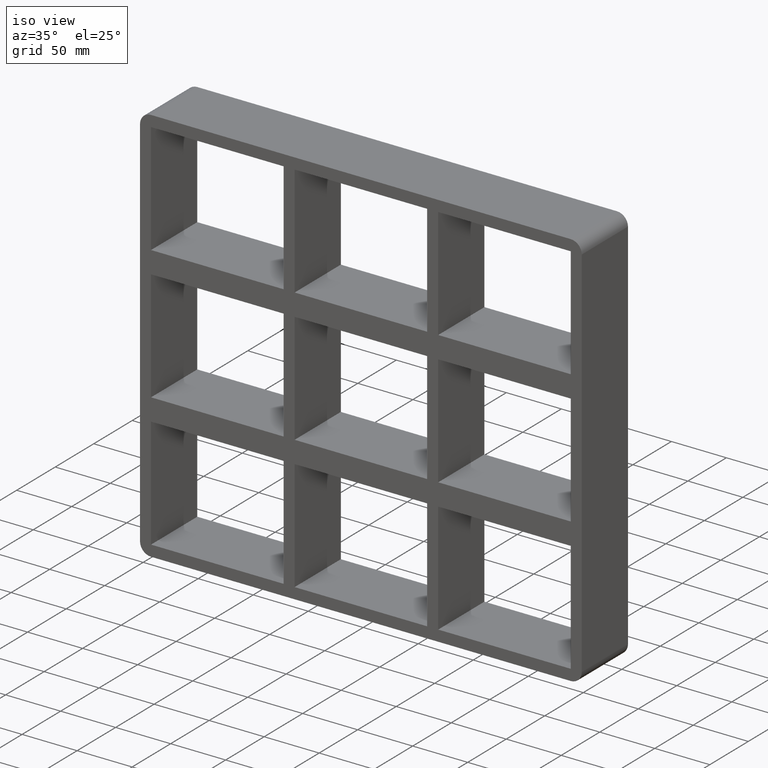
[diagram: clean part render]
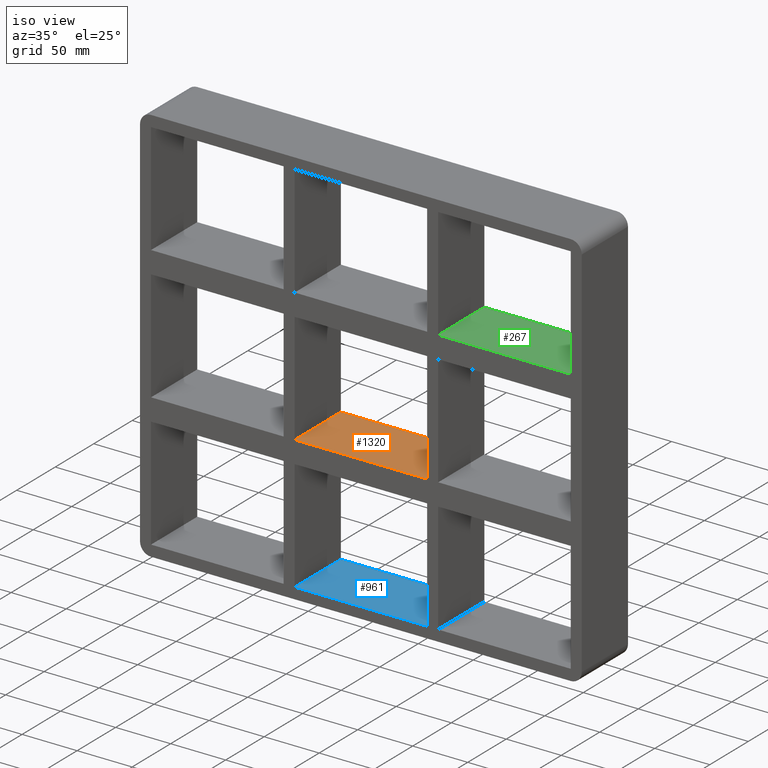
[diagram: same view with three faces highlighted in distinct colors, each labeled with its STEP entity id]
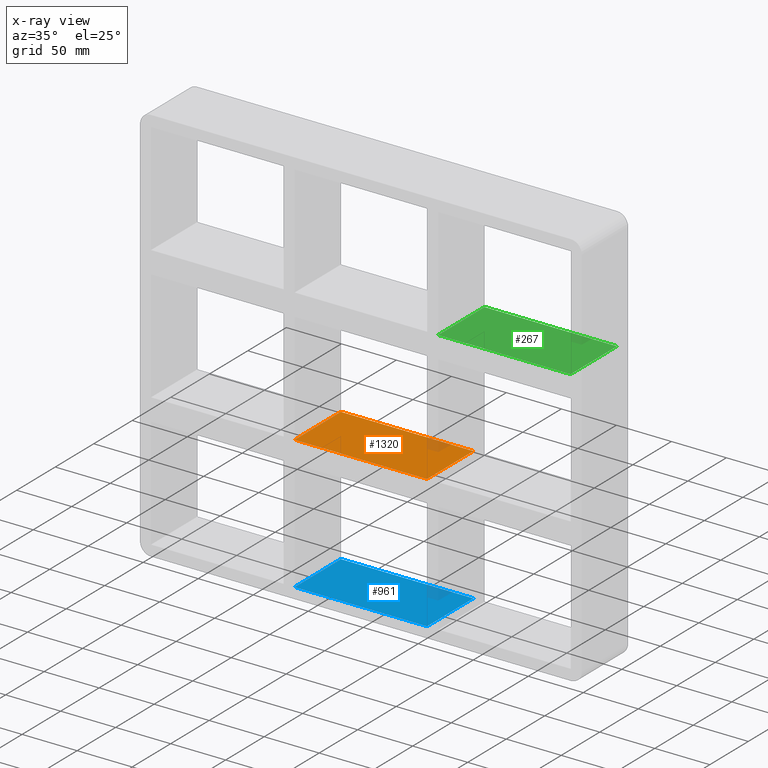
[diagram: x-ray of the same camera — body ghosted, the three highlighted faces saturated]
A machine part, iso view with three faces highlighted in distinct colors.
The next image is the same camera in x-ray (body ghosted, the three faces saturated) — at least one of them is partly hidden behind the body in this view.
Their STEP definitions:

[orange] entity #1320 — the highlighted planar face has unit normal (0, 0, 1).
#690=CARTESIAN_POINT('',(-60.249999999996362,57.0,-50.500000000000114));
#691=VERTEX_POINT('',#690);
#698=CARTESIAN_POINT('',(60.249999999998622,57.0,-50.500000000000114));
#699=VERTEX_POINT('',#698);
#700=CARTESIAN_POINT('',(-60.249999999996362,57.0,-50.500000000000114));
#701=DIRECTION('',(1.0,0.0,0.0));
#702=VECTOR('',#701,120.499999999995);
#703=LINE('',#700,#702);
#704=EDGE_CURVE('',#691,#699,#703,.T.);
#835=CARTESIAN_POINT('',(60.249999999998622,-3.0,-50.500000000000114));
#836=VERTEX_POINT('',#835);
#837=CARTESIAN_POINT('',(60.249999999998607,-3.0,-50.500000000000114));
#838=DIRECTION('',(0.0,1.0,0.0));
#839=VECTOR('',#838,60.0);
#840=LINE('',#837,#839);
#841=EDGE_CURVE('',#836,#699,#840,.T.);
#1084=CARTESIAN_POINT('',(-60.249999999996362,-3.0,-50.500000000000114));
#1085=VERTEX_POINT('',#1084);
#1086=CARTESIAN_POINT('',(-60.249999999996362,-3.0,-50.500000000000114));
#1087=DIRECTION('',(1.0,0.0,0.0));
#1088=VECTOR('',#1087,120.499999999995);
#1089=LINE('',#1086,#1088);
#1090=EDGE_CURVE('',#1085,#836,#1089,.T.);
#1304=CARTESIAN_POINT('',(-190.74999999999974,-3.0,-50.500000000000114));
#1305=DIRECTION('',(0.0,0.0,1.0));
#1306=DIRECTION('',(1.0,0.0,0.0));
#1307=AXIS2_PLACEMENT_3D('',#1304,#1305,#1306);
#1308=PLANE('',#1307);
#1309=ORIENTED_EDGE('',*,*,#841,.T.);
#1310=ORIENTED_EDGE('',*,*,#704,.F.);
#1311=CARTESIAN_POINT('',(-60.249999999996362,-3.0,-50.500000000000114));
#1312=DIRECTION('',(0.0,1.0,0.0));
#1313=VECTOR('',#1312,60.0);
#1314=LINE('',#1311,#1313);
#1315=EDGE_CURVE('',#1085,#691,#1314,.T.);
#1316=ORIENTED_EDGE('',*,*,#1315,.F.);
#1317=ORIENTED_EDGE('',*,*,#1090,.T.);
#1318=EDGE_LOOP('',(#1309,#1310,#1316,#1317));
#1319=FACE_OUTER_BOUND('',#1318,.T.);
#1320=ADVANCED_FACE('',(#1319),#1308,.T.);

[blue] entity #961 — the highlighted planar face has unit normal (0, 0, -1).
#748=CARTESIAN_POINT('',(60.249999999998636,57.0,-171.50000000000003));
#749=VERTEX_POINT('',#748);
#766=CARTESIAN_POINT('',(-60.249999999996362,57.0,-171.49999999998417));
#767=VERTEX_POINT('',#766);
#774=CARTESIAN_POINT('',(-60.249999999996348,57.0,-171.50000000000003));
#775=DIRECTION('',(1.0,0.0,0.0));
#776=VECTOR('',#775,120.49999999999498);
#777=LINE('',#774,#776);
#778=EDGE_CURVE('',#767,#749,#777,.T.);
#866=CARTESIAN_POINT('',(60.249999999998636,-3.0,-171.50000000000003));
#867=VERTEX_POINT('',#866);
#868=CARTESIAN_POINT('',(60.249999999998636,-3.0,-171.50000000000003));
#869=DIRECTION('',(0.0,1.0,0.0));
#870=VECTOR('',#869,60.000000000000007);
#871=LINE('',#868,#870);
#872=EDGE_CURVE('',#867,#749,#871,.T.);
#938=CARTESIAN_POINT('',(190.75000000000006,0.0,-171.50000000000003));
#939=DIRECTION('',(0.0,0.0,-1.0));
#940=DIRECTION('',(-1.0,0.0,0.0));
#941=AXIS2_PLACEMENT_3D('',#938,#939,#940);
#942=PLANE('',#941);
#943=ORIENTED_EDGE('',*,*,#872,.T.);
#944=ORIENTED_EDGE('',*,*,#778,.F.);
#945=CARTESIAN_POINT('',(-60.249999999996362,-3.0,-171.49999999998417));
#946=VERTEX_POINT('',#945);
#947=CARTESIAN_POINT('',(-60.249999999996362,57.000000000000007,-171.50000000000003));
#948=DIRECTION('',(0.0,-1.0,0.0));
#949=VECTOR('',#948,60.000000000000007);
#950=LINE('',#947,#949);
#951=EDGE_CURVE('',#767,#946,#950,.T.);
#952=ORIENTED_EDGE('',*,*,#951,.T.);
#953=CARTESIAN_POINT('',(60.249999999998636,-3.0,-171.50000000000003));
#954=DIRECTION('',(-1.0,0.0,0.0));
#955=VECTOR('',#954,120.49999999999498);
#956=LINE('',#953,#955);
#957=EDGE_CURVE('',#867,#946,#956,.T.);
#958=ORIENTED_EDGE('',*,*,#957,.F.);
#959=EDGE_LOOP('',(#943,#944,#952,#958));
#960=FACE_OUTER_BOUND('',#959,.T.);
#961=ADVANCED_FACE('',(#960),#942,.F.);

[green] entity #267 — the highlighted planar face has unit normal (0, 0, 1).
#228=CARTESIAN_POINT('',(-190.74999999999974,-3.0,70.499999999999901));
#229=DIRECTION('',(0.0,0.0,1.0));
#230=DIRECTION('',(1.0,0.0,0.0));
#231=AXIS2_PLACEMENT_3D('',#228,#229,#230);
#232=PLANE('',#231);
#233=CARTESIAN_POINT('',(70.250000000003638,-3.0,70.499999999999901));
#234=VERTEX_POINT('',#233);
#235=CARTESIAN_POINT('',(70.250000000003638,57.0,70.499999999999901));
#236=VERTEX_POINT('',#235);
#237=CARTESIAN_POINT('',(70.250000000003638,-3.0,70.499999999999901));
#238=DIRECTION('',(0.0,1.0,0.0));
#239=VECTOR('',#238,60.0);
#240=LINE('',#237,#239);
#241=EDGE_CURVE('',#234,#236,#240,.T.);
#242=ORIENTED_EDGE('',*,*,#241,.F.);
#243=CARTESIAN_POINT('',(190.74999999999994,-3.0,70.499999999999901));
#244=VERTEX_POINT('',#243);
#245=CARTESIAN_POINT('',(70.250000000003666,-3.0,70.499999999999901));
#246=DIRECTION('',(1.0,0.0,0.0));
#247=VECTOR('',#246,120.49999999999631);
#248=LINE('',#245,#247);
#249=EDGE_CURVE('',#234,#244,#248,.T.);
#250=ORIENTED_EDGE('',*,*,#249,.T.);
#251=CARTESIAN_POINT('',(190.74999999999994,57.0,70.499999999999901));
#252=VERTEX_POINT('',#251);
#253=CARTESIAN_POINT('',(190.75000000000003,57.000000000000007,70.499999999999901));
#254=DIRECTION('',(0.0,-1.0,0.0));
#255=VECTOR('',#254,60.000000000000007);
#256=LINE('',#253,#255);
#257=EDGE_CURVE('',#252,#244,#256,.T.);
#258=ORIENTED_EDGE('',*,*,#257,.F.);
#259=CARTESIAN_POINT('',(70.250000000003666,57.0,70.499999999999901));
#260=DIRECTION('',(1.0,0.0,0.0));
#261=VECTOR('',#260,120.49999999999631);
#262=LINE('',#259,#261);
#263=EDGE_CURVE('',#236,#252,#262,.T.);
#264=ORIENTED_EDGE('',*,*,#263,.F.);
#265=EDGE_LOOP('',(#242,#250,#258,#264));
#266=FACE_OUTER_BOUND('',#265,.T.);
#267=ADVANCED_FACE('',(#266),#232,.T.);